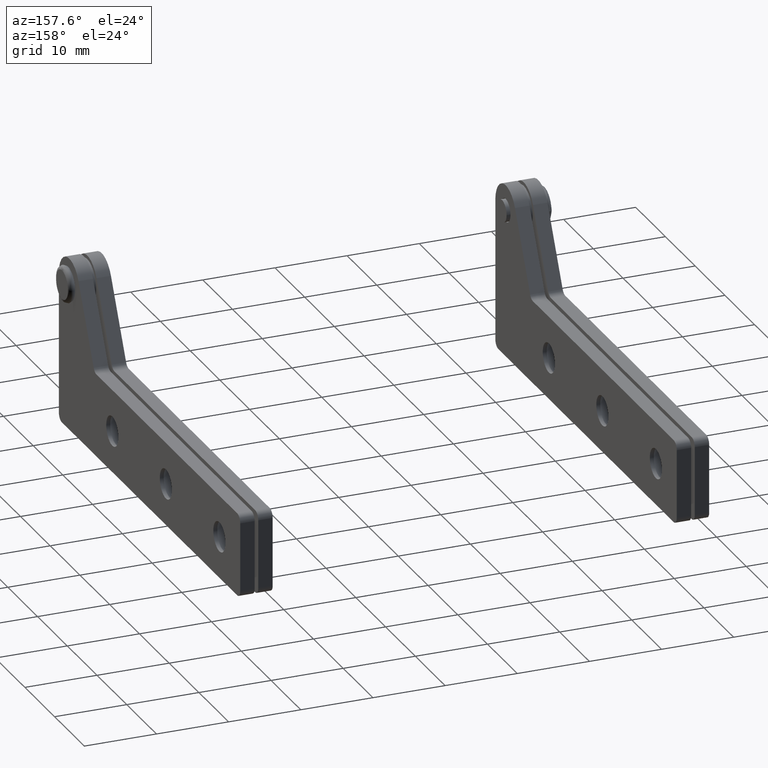
[diagram: clean part render]
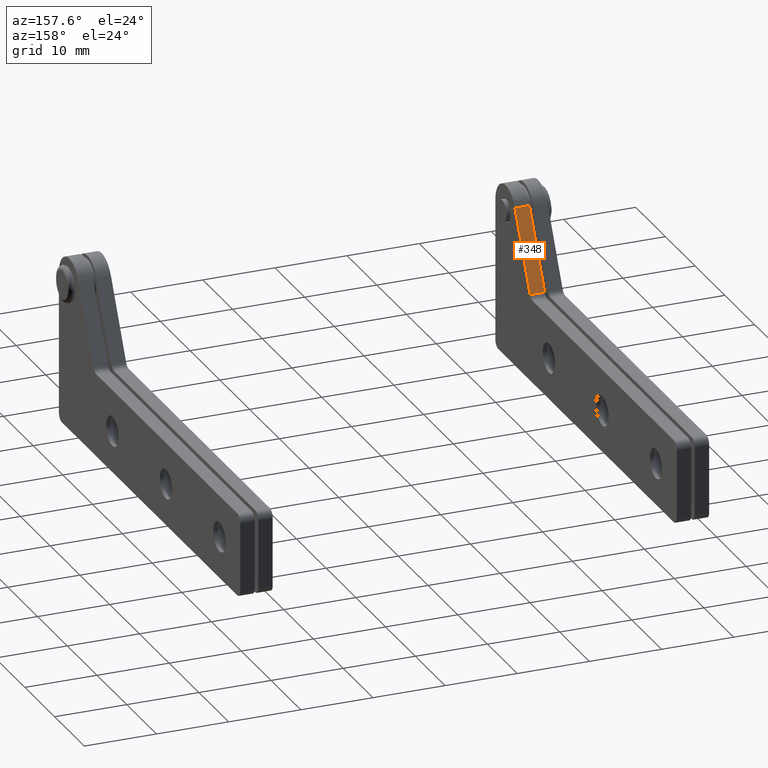
[diagram: same view with one face highlighted and labeled with its STEP entity id]
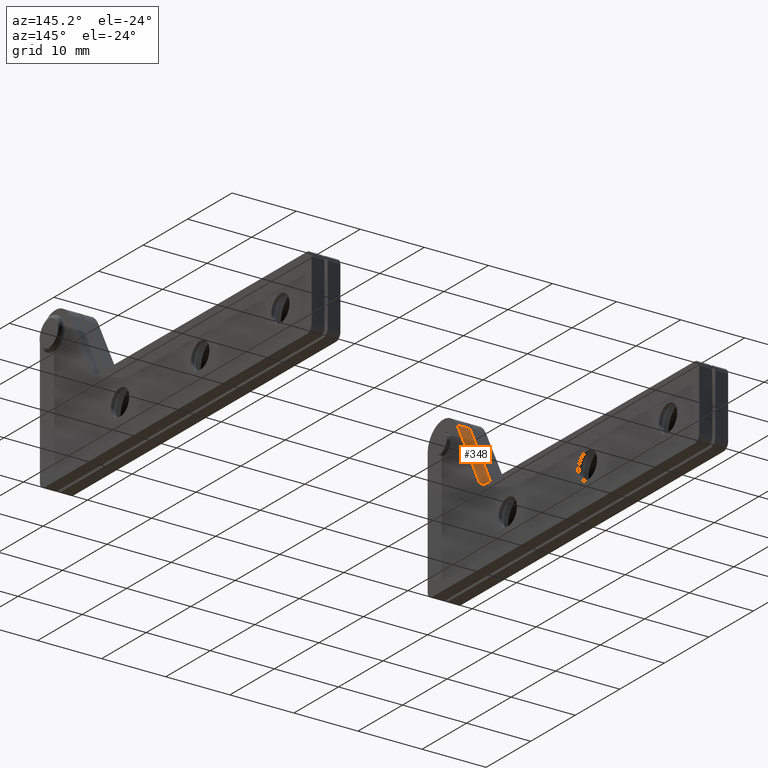
[diagram: same view with one face highlighted and labeled with its STEP entity id]
A machine part, auxiliary view. The second image highlights one B-rep face of the part: STEP entity #348.
A second angle (auxiliary view) of the same face is appended — the face is thin or edge-on in the first view.
In plain terms, the highlighted planar face has unit normal (0, 0.8915, 0.4531).
Its self-contained STEP definition (entity closure, byte-faithful):
#348=ADVANCED_FACE('',(#614),#613,.T.);
#613=PLANE('',#1966);
#614=FACE_OUTER_BOUND('',#1967,.T.);
#1963=CARTESIAN_POINT('',(-8.73222460510E+000,-2.00000000000E-001,-9.45694137829E+000));
#1964=DIRECTION('',(-8.91478491245E-001,0.00000000000E+000,4.53063019509E-001));
#1965=DIRECTION('',(4.53063019509E-001,0.00000000000E+000,8.91478491245E-001));
#1966=AXIS2_PLACEMENT_3D('',#1963,#1964,#1965);
#1967=EDGE_LOOP('',(#2879,#2880,#2881,#2882));
#2879=ORIENTED_EDGE('',*,*,#3468,.F.);
#2880=ORIENTED_EDGE('',*,*,#3484,.F.);
#2881=ORIENTED_EDGE('',*,*,#3453,.T.);
#2882=ORIENTED_EDGE('',*,*,#3485,.T.);
#3453=EDGE_CURVE('',#3902,#3895,#3903,.T.);
#3468=EDGE_CURVE('',#3999,#4006,#4007,.T.);
#3484=EDGE_CURVE('',#3902,#3999,#4115,.T.);
#3485=EDGE_CURVE('',#3895,#4006,#4121,.T.);
#3895=VERTEX_POINT('',#5942);
#3902=VERTEX_POINT('',#5947);
#3903=LINE('',#5948,#5949);
#3999=VERTEX_POINT('',#6013);
#4006=VERTEX_POINT('',#6018);
#4007=LINE('',#6019,#6020);
#4115=LINE('',#6090,#6091);
#4121=LINE('',#6093,#6094);
#5942=CARTESIAN_POINT('',(-8.22203825185E+000,2.00000000000E+000,-8.45306301951E+000));
#5947=CARTESIAN_POINT('',(-3.12017471936E+000,2.00000000000E+000,1.58572056828E+000));
#5948=CARTESIAN_POINT('',(-3.12017471936E+000,2.00000000000E+000,1.58572056828E+000));
#5949=VECTOR('',#5950,1.12608253439E+001);
#5950=DIRECTION('',(-4.53063019509E-001,0.00000000000E+000,-8.91478491245E-001));
#6013=CARTESIAN_POINT('',(-3.12017471936E+000,0.00000000000E+000,1.58572056828E+000));
#6018=CARTESIAN_POINT('',(-8.22203825185E+000,0.00000000000E+000,-8.45306301951E+000));
#6019=CARTESIAN_POINT('',(-3.12017471936E+000,0.00000000000E+000,1.58572056828E+000));
#6020=VECTOR('',#6021,1.12608253439E+001);
#6021=DIRECTION('',(-4.53063019509E-001,0.00000000000E+000,-8.91478491245E-001));
#6090=CARTESIAN_POINT('',(-3.12017471936E+000,2.00000000000E+000,1.58572056828E+000));
#6091=VECTOR('',#6092,2.00000000000E+000);
#6092=DIRECTION('',(0.00000000000E+000,-1.00000000000E+000,0.00000000000E+000));
#6093=CARTESIAN_POINT('',(-8.22203825185E+000,2.00000000000E+000,-8.45306301951E+000));
#6094=VECTOR('',#6095,2.00000000000E+000);
#6095=DIRECTION('',(0.00000000000E+000,-1.00000000000E+000,0.00000000000E+000));